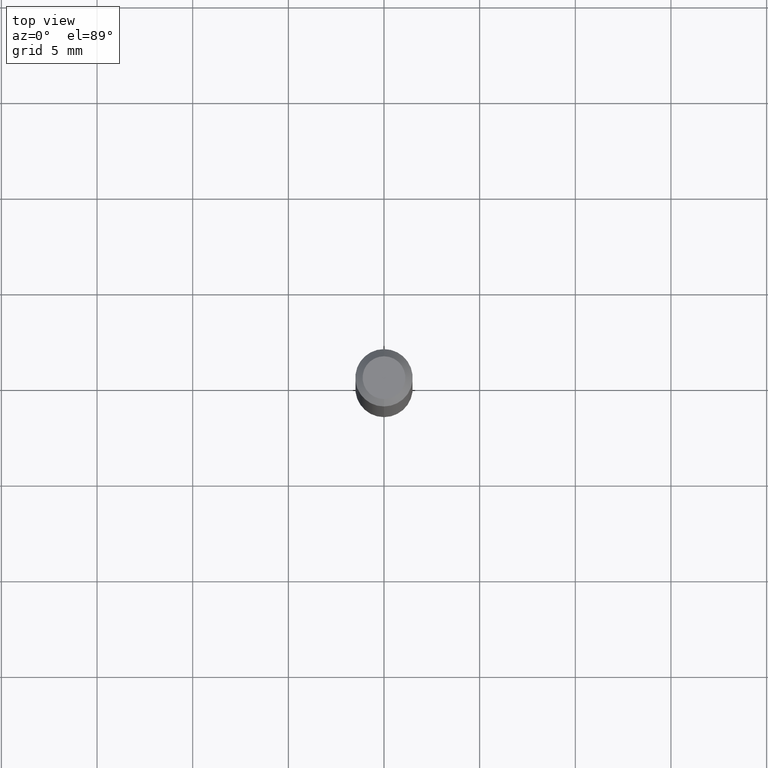
[diagram: clean part render]
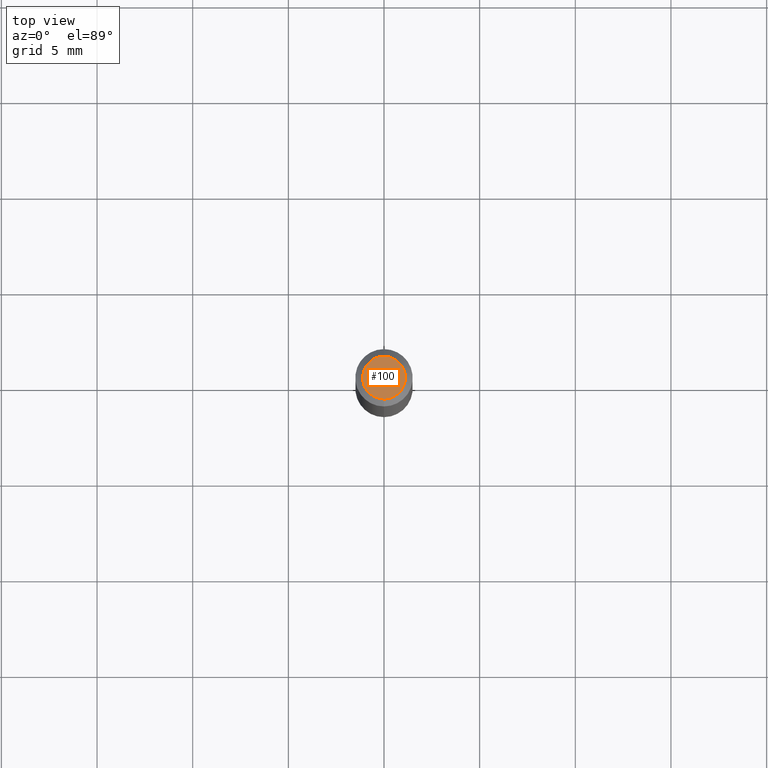
[diagram: same view with one face highlighted and labeled with its STEP entity id]
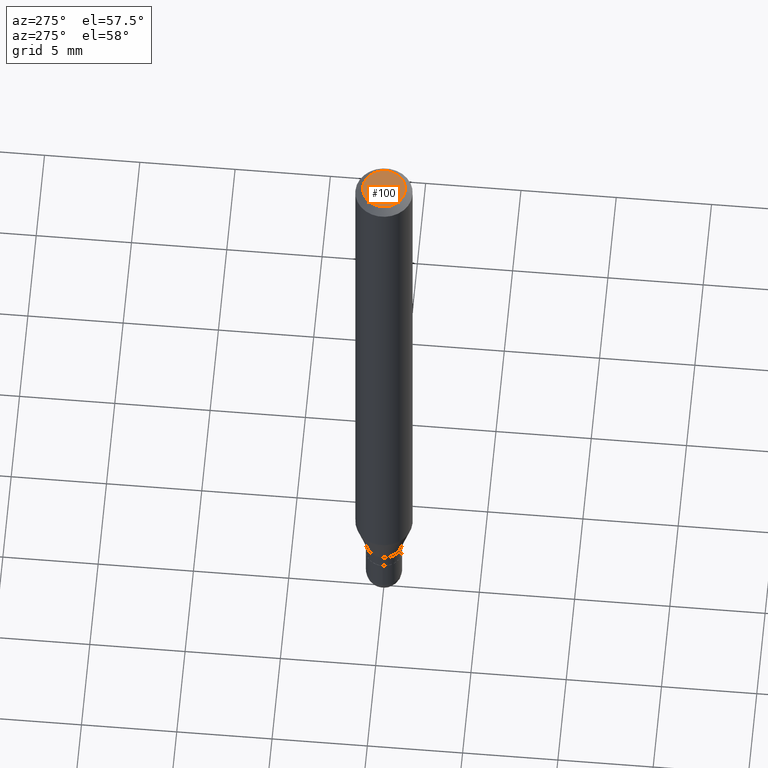
[diagram: same view with one face highlighted and labeled with its STEP entity id]
A machine part, top view. The second image highlights one B-rep face of the part: STEP entity #100.
A second angle (auxiliary view) of the same face is appended — the face is thin or edge-on in the first view.
In plain terms, the highlighted planar face has unit normal (0, -0, -1).
Its self-contained STEP definition (entity closure, byte-faithful):
#24 = PLANE ( 'NONE',  #488 ) ;
#26 = DIRECTION ( 'NONE',  ( -2.445517740109687553E-29, 3.491411262678042591E-15, 1.000000000000000000 ) ) ;
#44 = VERTEX_POINT ( 'NONE', #428 ) ;
#75 = CARTESIAN_POINT ( 'NONE',  ( 3.599717260347271507E-16, 0.04404999999999999888, -1.776619958574267450E-16 ) ) ;
#81 = EDGE_CURVE ( 'NONE', #215, #44, #306, .T. ) ;
#100 = ADVANCED_FACE ( 'NONE', ( #495 ), #24, .F. ) ;
#103 = DIRECTION ( 'NONE',  ( 6.982962677686265922E-15, 1.000000000000000000, -3.491411262678042985E-15 ) ) ;
#128 = ORIENTED_EDGE ( 'NONE', *, *, #81, .T. ) ;
#141 = DIRECTION ( 'NONE',  ( -2.445517740109687553E-29, 3.491411262678042591E-15, 1.000000000000000000 ) ) ;
#159 = AXIS2_PLACEMENT_3D ( 'NONE', #427, #26, #237 ) ;
#188 = DIRECTION ( 'NONE',  ( 2.445517740109686993E-29, -3.491411262678042985E-15, -1.000000000000000000 ) ) ;
#215 = VERTEX_POINT ( 'NONE', #75 ) ;
#237 = DIRECTION ( 'NONE',  ( -6.982962677686265133E-15, -1.000000000000000000, 3.491411262678042985E-15 ) ) ;
#270 = CARTESIAN_POINT ( 'NONE',  ( 5.836308724407766617E-46, -8.332368102939804425E-32, -2.386532973645896929E-17 ) ) ;
#273 = CARTESIAN_POINT ( 'NONE',  ( 3.075995059520799729E-16, 0.04404999999999999888, -1.657293309891972650E-16 ) ) ;
#306 = CIRCLE ( 'NONE', #401, 0.04404999999999999888 ) ;
#351 = CIRCLE ( 'NONE', #159, 0.04404999999999999888 ) ;
#399 = EDGE_LOOP ( 'NONE', ( #128, #475 ) ) ;
#401 = AXIS2_PLACEMENT_3D ( 'NONE', #270, #141, #460 ) ;
#427 = CARTESIAN_POINT ( 'NONE',  ( 5.836308724407766617E-46, -8.332368102939804425E-32, -2.386532973645896929E-17 ) ) ;
#428 = CARTESIAN_POINT ( 'NONE',  ( -3.536586717851222218E-16, -0.04404999999999999888, 1.299313363845088003E-16 ) ) ;
#460 = DIRECTION ( 'NONE',  ( -6.982962677686265133E-15, -1.000000000000000000, 3.491411262678042985E-15 ) ) ;
#475 = ORIENTED_EDGE ( 'NONE', *, *, #480, .T. ) ;
#480 = EDGE_CURVE ( 'NONE', #44, #215, #351, .T. ) ;
#488 = AXIS2_PLACEMENT_3D ( 'NONE', #273, #188, #103 ) ;
#495 = FACE_OUTER_BOUND ( 'NONE', #399, .T. ) ;